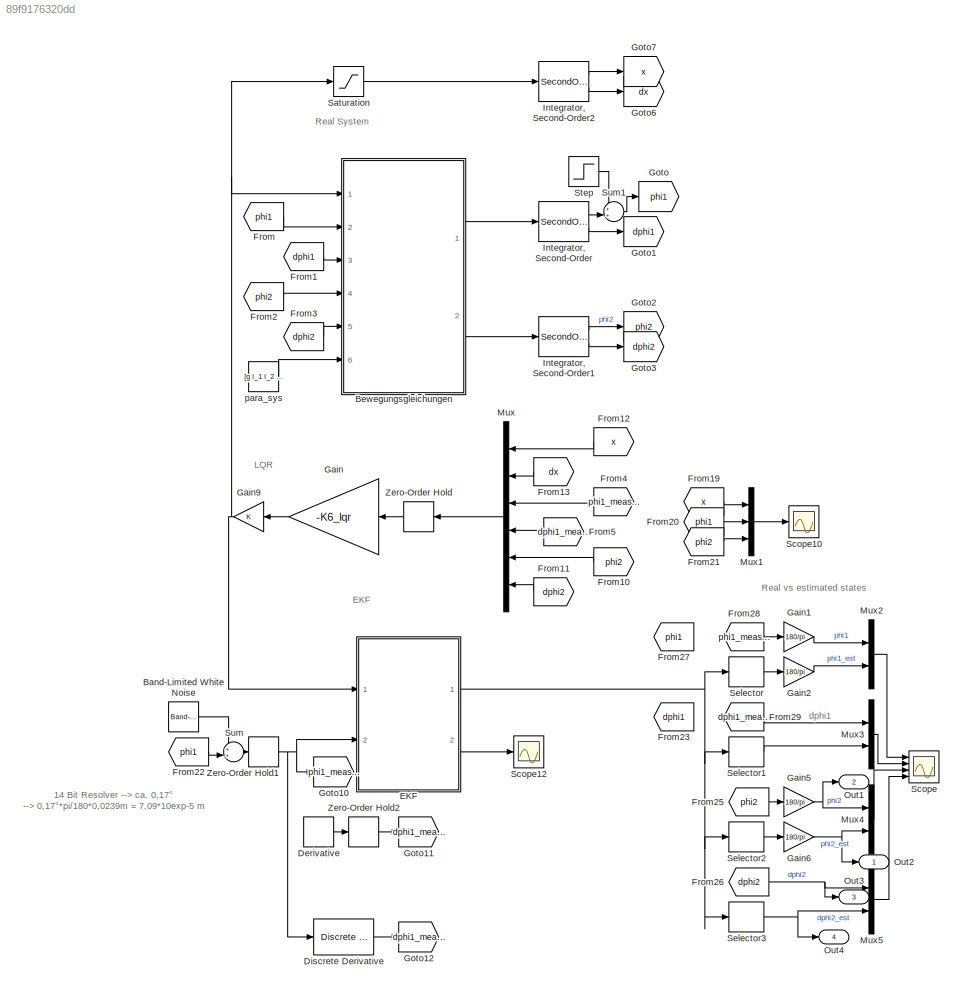
MODEL slx_89f9176320dd
KIND model
CONFIG AbsTol = auto
CONFIG FixedStep = T_s
CONFIG MaxStep = auto
CONFIG MinStep = auto
CONFIG RelTol = 1e-3
CONFIG SampleTimeConstraint = Unconstrained
CONFIG Solver = FixedStepAuto
CONFIG SolverMode = Auto
CONFIG SolverName = FixedStepAuto
CONFIG StartTime = 0.0
CONFIG StopTime = 5
BLOCK [Reference] Band-Limited White Noise  REF=simulink/Sources/Band-Limited
White Noise
  Cov = noise_power
  Ports = [0, 1]
  SourceBlock = simulink/Sources/Band-Limited\nWhite Noise
  SourceType = Band-Limited White Noise.
  Ts = T_s
  VectorParams1D = on
  seed = [23341]
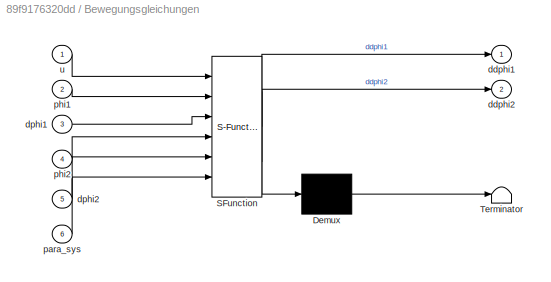
BLOCK [SubSystem] Bewegungsgleichungen
  ErrorFcn = Stateflow.Translate.translate
  PermitHierarchicalResolution = ExplicitOnly
  Ports = [6, 2]
  RequestExecContextInheritance = off
  SFBlockType = MATLAB Function
  TreatAsAtomicUnit = on
BLOCK [Demux] Bewegungsgleichungen/ Demux 
  Outputs = 1
  Ports = [1, 1]
BLOCK [S-Function] Bewegungsgleichungen/ SFunction 
  EnableBusSupport = on
  FunctionName = sf_sfun
  PortCounts = [6 3]
  Ports = [6, 3]
  Tag = Stateflow S-Function dp_EKF 5
BLOCK [Terminator] Bewegungsgleichungen/ Terminator 
BLOCK [Outport] Bewegungsgleichungen/ddphi1
  IconDisplay = Port number
BLOCK [Outport] Bewegungsgleichungen/ddphi2
  IconDisplay = Port number
  Port = 2
BLOCK [Inport] Bewegungsgleichungen/dphi1
  IconDisplay = Port number
  Port = 3
BLOCK [Inport] Bewegungsgleichungen/dphi2
  IconDisplay = Port number
  Port = 5
BLOCK [Inport] Bewegungsgleichungen/para_sys
  IconDisplay = Port number
  Port = 6
BLOCK [Inport] Bewegungsgleichungen/phi1
  IconDisplay = Port number
  Port = 2
BLOCK [Inport] Bewegungsgleichungen/phi2
  IconDisplay = Port number
  Port = 4
BLOCK [Inport] Bewegungsgleichungen/u
  IconDisplay = Port number
BLOCK [Derivative] Derivative
  Commented = on
BLOCK [Reference] Discrete Derivative  REF=simulink/Discrete/Discrete Derivative
  DoSatur = off
  ICPrevScaledInput = 0.0
  InputProcessing = Inherited
  LockScale = off
  OutDataType = fixdt(1, 16)
  OutDataTypeStr = Inherit: Inherit via internal rule
  OutMax = []
  OutMin = []
  OutScaling = 2^-10
  OutputDataTypeScalingMode = Inherit via internal rule
  Ports = [1, 1]
  RndMeth = Floor
  SourceBlock = simulink/Discrete/Discrete Derivative
  SourceType = Discrete Derivative
  gainval = 1.0
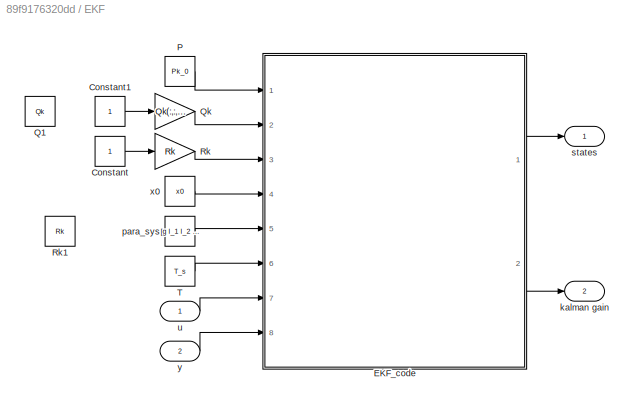
BLOCK [SubSystem] EKF
  Ports = [2, 2]
  RequestExecContextInheritance = off
BLOCK [Constant] EKF/Constant
BLOCK [Constant] EKF/Constant1
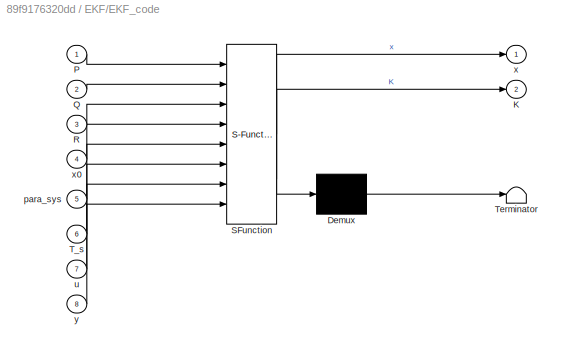
BLOCK [SubSystem] EKF/EKF_code
  ErrorFcn = Stateflow.Translate.translate
  PermitHierarchicalResolution = ExplicitOnly
  Ports = [8, 2]
  RequestExecContextInheritance = off
  SFBlockType = MATLAB Function
  TreatAsAtomicUnit = on
BLOCK [Demux] EKF/EKF_code/ Demux 
  Outputs = 1
  Ports = [1, 1]
BLOCK [S-Function] EKF/EKF_code/ SFunction 
  EnableBusSupport = on
  FunctionName = sf_sfun
  PortCounts = [8 3]
  Ports = [8, 3]
  Tag = Stateflow S-Function dp_EKF 2
BLOCK [Terminator] EKF/EKF_code/ Terminator 
BLOCK [Outport] EKF/EKF_code/K
  IconDisplay = Port number
  Port = 2
BLOCK [Inport] EKF/EKF_code/P
  IconDisplay = Port number
BLOCK [Inport] EKF/EKF_code/Q
  IconDisplay = Port number
  Port = 2
BLOCK [Inport] EKF/EKF_code/R
  IconDisplay = Port number
  Port = 3
BLOCK [Inport] EKF/EKF_code/T_s
  IconDisplay = Port number
  Port = 6
BLOCK [Inport] EKF/EKF_code/para_sys
  IconDisplay = Port number
  Port = 5
BLOCK [Inport] EKF/EKF_code/u
  IconDisplay = Port number
  Port = 7
BLOCK [Outport] EKF/EKF_code/x
  IconDisplay = Port number
BLOCK [Inport] EKF/EKF_code/x0
  IconDisplay = Port number
  Port = 4
BLOCK [Inport] EKF/EKF_code/y
  IconDisplay = Port number
  Port = 8
BLOCK [Constant] EKF/P
  Value = Pk_0
BLOCK [Constant] EKF/Q1
  Commented = on
  Value = Qk
BLOCK [Gain] EKF/Qk
  Gain = Qk(:,:,i_min,ii_min,iii_min, iiii_min)
  OutDataTypeStr = Inherit: Inherit via internal rule
  ParamDataTypeStr = Inherit: Inherit via internal rule
  SaturateOnIntegerOverflow = off
BLOCK [Gain] EKF/Rk
  Gain = Rk
  OutDataTypeStr = Inherit: Inherit via internal rule
  ParamDataTypeStr = Inherit: Inherit via internal rule
  SaturateOnIntegerOverflow = off
BLOCK [Constant] EKF/Rk1
  Commented = on
  Value = Rk
BLOCK [Constant] EKF/T
  Value = T_s
BLOCK [Outport] EKF/kalman gain
  IconDisplay = Port number
  Port = 2
BLOCK [Constant] EKF/para_sys
  Value = [g l_1 l_2 m_1 m_2 m_3 d_p1 d_p2]
BLOCK [Outport] EKF/states
  IconDisplay = Port number
BLOCK [Inport] EKF/u
  IconDisplay = Port number
BLOCK [Constant] EKF/x0
  Value = x0
BLOCK [Inport] EKF/y
  IconDisplay = Port number
  Port = 2
BLOCK [From] From
  GotoTag = phi1
BLOCK [From] From1
  GotoTag = dphi1
BLOCK [From] From10
  GotoTag = phi2
BLOCK [From] From11
  GotoTag = dphi2
BLOCK [From] From12
  GotoTag = x
BLOCK [From] From13
  GotoTag = dx
BLOCK [From] From19
  GotoTag = x
BLOCK [From] From2
  GotoTag = phi2
BLOCK [From] From20
  GotoTag = phi1
BLOCK [From] From21
  GotoTag = phi2
BLOCK [From] From22
  GotoTag = phi1
BLOCK [From] From23
  Commented = on
  GotoTag = dphi1
BLOCK [From] From25
  GotoTag = phi2
BLOCK [From] From26
  GotoTag = dphi2
BLOCK [From] From27
  Commented = on
  GotoTag = phi1
BLOCK [From] From28
  GotoTag = phi1_measure
BLOCK [From] From29
  GotoTag = dphi1_measure
BLOCK [From] From3
  GotoTag = dphi2
BLOCK [From] From4
  GotoTag = phi1_measure
BLOCK [From] From5
  GotoTag = dphi1_measure
BLOCK [Gain] Gain
  Gain = -K6_lqr
  Multiplication = Matrix(K*u) (u vector)
  OutDataTypeStr = Inherit: Inherit via internal rule
  ParamDataTypeStr = Inherit: Inherit via internal rule
  SampleTime = T_s
  SaturateOnIntegerOverflow = off
BLOCK [Gain] Gain1
  Gain = 180/pi
  OutDataTypeStr = Inherit: Inherit via internal rule
  ParamDataTypeStr = Inherit: Inherit via internal rule
  SaturateOnIntegerOverflow = off
BLOCK [Gain] Gain2
  Gain = 180/pi
  OutDataTypeStr = Inherit: Inherit via internal rule
  ParamDataTypeStr = Inherit: Inherit via internal rule
  SaturateOnIntegerOverflow = off
BLOCK [Gain] Gain5
  Gain = 180/pi
  OutDataTypeStr = Inherit: Inherit via internal rule
  ParamDataTypeStr = Inherit: Inherit via internal rule
  SaturateOnIntegerOverflow = off
BLOCK [Gain] Gain6
  Gain = 180/pi
  OutDataTypeStr = Inherit: Inherit via internal rule
  ParamDataTypeStr = Inherit: Inherit via internal rule
  SaturateOnIntegerOverflow = off
BLOCK [Gain] Gain9
  OutDataTypeStr = Inherit: Inherit via internal rule
  ParamDataTypeStr = Inherit: Inherit via internal rule
  SaturateOnIntegerOverflow = off
BLOCK [Goto] Goto
  GotoTag = phi1
BLOCK [Goto] Goto1
  GotoTag = dphi1
BLOCK [Goto] Goto10
  GotoTag = phi1_measure
BLOCK [Goto] Goto11
  Commented = on
  GotoTag = dphi1_measure
BLOCK [Goto] Goto12
  GotoTag = dphi1_measure
BLOCK [Goto] Goto2
  GotoTag = phi2
BLOCK [Goto] Goto3
  GotoTag = dphi2
BLOCK [Goto] Goto6
  GotoTag = dx
BLOCK [Goto] Goto7
  GotoTag = x
BLOCK [SecondOrderIntegrator] Integrator, Second-Order
  ICDXDT = dphi1_0
  ICX = phi1_0
  Ports = [1, 2]
BLOCK [SecondOrderIntegrator] Integrator, Second-Order1
  ICDXDT = dphi2_0
  ICX = phi2_0
  Ports = [1, 2]
BLOCK [SecondOrderIntegrator] Integrator, Second-Order2
  ICDXDT = dx_0
  ICX = x_0
  LimitDXDT = on
  LimitX = on
  LowerLimitDXDT = -5
  LowerLimitX = -0.2
  Ports = [1, 2]
  UpperLimitDXDT = 5
  UpperLimitX = 0.2
BLOCK [Mux] Mux
  DisplayOption = bar
  Inputs = 6
  Ports = [6, 1]
BLOCK [Mux] Mux1
  DisplayOption = bar
  Inputs = 3
  Ports = [3, 1]
BLOCK [Mux] Mux2
  DisplayOption = bar
  Inputs = 2
  Ports = [2, 1]
BLOCK [Mux] Mux3
  DisplayOption = bar
  Inputs = 2
  Ports = [2, 1]
BLOCK [Mux] Mux4
  DisplayOption = bar
  Inputs = 2
  Ports = [2, 1]
BLOCK [Mux] Mux5
  DisplayOption = bar
  Inputs = 2
  Ports = [2, 1]
BLOCK [Outport] Out1
  IconDisplay = Port number
  Port = 2
BLOCK [Outport] Out2
  IconDisplay = Port number
BLOCK [Outport] Out3
  IconDisplay = Port number
  Port = 3
BLOCK [Outport] Out4
  IconDisplay = Port number
  Port = 4
BLOCK [Saturate] Saturation
  InputPortMap = u0
  LowerLimit = -20
  Ports = [1, 1]
  UpperLimit = 20
BLOCK [Scope] Scope
  DataFormat = StructureWithTime
  Floating = off
  LimitDataPoints = off
  NumInputPorts = 4
  Ports = [4]
  SaveName = ScopeData1
  ShowLegends = on
  YMax = 4.283~8~10.03074~0.90786
  YMin = -6.68849~-5~-26.45814~-0.15164
BLOCK [Scope] Scope10
  DataFormat = StructureWithTime
  Floating = off
  LimitDataPoints = off
  NumInputPorts = 1
  Ports = [1]
  SaveName = ScopeData9
  ShowLegends = on
  YMax = 0.07045
  YMin = -0.10904
BLOCK [Scope] Scope12
  DataFormat = StructureWithTime
  Floating = off
  LimitDataPoints = off
  NumInputPorts = 1
  Ports = [1]
  SaveName = ScopeData2
  ShowLegends = on
  YMax = 1.18362
  YMin = -0.53538
BLOCK [Selector] Selector
  Indices = [1]
  InputPortWidth = 4
  Ports = [1, 1]
BLOCK [Selector] Selector1
  Indices = [2]
  InputPortWidth = 4
  Ports = [1, 1]
BLOCK [Selector] Selector2
  Indices = [3]
  InputPortWidth = 4
  Ports = [1, 1]
BLOCK [Selector] Selector3
  Indices = [4]
  InputPortWidth = 4
  Ports = [1, 1]
BLOCK [Step] Step
  After = 1*0.0175
  SampleTime = 0
  Time = 3.5
BLOCK [Sum] Sum
  IconShape = round
  InputSameDT = off
  Inputs = ++|
  OutDataTypeStr = Inherit: Inherit via internal rule
  Ports = [2, 1]
  SaturateOnIntegerOverflow = off
BLOCK [Sum] Sum1
  IconShape = round
  InputSameDT = off
  Inputs = ++|
  OutDataTypeStr = Inherit: Inherit via internal rule
  Ports = [2, 1]
  SaturateOnIntegerOverflow = off
BLOCK [ZeroOrderHold] Zero-Order Hold
  SampleTime = T_s
BLOCK [ZeroOrderHold] Zero-Order Hold1
  SampleTime = T_s
BLOCK [ZeroOrderHold] Zero-Order Hold2
  Commented = on
  SampleTime = T_s
BLOCK [Constant] para_sys
  Value = [g l_1 l_2 m_1 m_2 m_3 d_p1 d_p2]
ANNOTATION (root): 14 Bit Resolver --> ca. 0,17° --> 0,17°*pi/180*0,0239m = 7,09*10exp-5 m
ANNOTATION (root): EKF
ANNOTATION (root): LQR
ANNOTATION (root): Real System
ANNOTATION (root): Real vs estimated states
ANNOTATION (root): dphi1
LINE Band-Limited White Noise:1 -> Sum:1
LINE Bewegungsgleichungen:1 -> Integrator, Second-Order:1
LINE Bewegungsgleichungen:2 -> Integrator, Second-Order1:1
LINE Derivative:1 -> Zero-Order Hold2:1
LINE Discrete Derivative:1 -> Goto12:1
LINE EKF/Constant1:1 -> EKF/Qk:1
LINE EKF/Constant:1 -> EKF/Rk:1
LINE EKF/EKF_code:1 -> EKF/states:1
LINE EKF/EKF_code:2 -> EKF/kalman gain:1
LINE EKF/P:1 -> EKF/EKF_code:1
LINE EKF/Qk:1 -> EKF/EKF_code:2
LINE EKF/Rk:1 -> EKF/EKF_code:3
LINE EKF/T:1 -> EKF/EKF_code:6
LINE EKF/para_sys:1 -> EKF/EKF_code:5
LINE EKF/u:1 -> EKF/EKF_code:7
LINE EKF/x0:1 -> EKF/EKF_code:4
LINE EKF/y:1 -> EKF/EKF_code:8
NET EKF:1 -> Selector1:1, Selector2:1, Selector3:1, Selector:1
LINE EKF:2 -> Scope12:1
LINE From10:1 -> Mux:5
LINE From11:1 -> Mux:6
LINE From12:1 -> Mux:1
LINE From13:1 -> Mux:2
LINE From19:1 -> Mux1:1
LINE From1:1 -> Bewegungsgleichungen:3
LINE From20:1 -> Mux1:2
LINE From21:1 -> Mux1:3
LINE From22:1 -> Sum:2
LINE From25:1 -> Gain5:1
NET From26:1 -> Mux5:1, Out3:1
LINE From28:1 -> Gain1:1
LINE From29:1 -> Mux3:1
LINE From2:1 -> Bewegungsgleichungen:4
LINE From3:1 -> Bewegungsgleichungen:5
LINE From4:1 -> Mux:3
LINE From5:1 -> Mux:4
LINE From:1 -> Bewegungsgleichungen:2
LINE Gain1:1 -> Mux2:1
LINE Gain2:1 -> Mux2:2
NET Gain5:1 -> Mux4:1, Out1:1
NET Gain6:1 -> Mux4:2, Out2:1
NET Gain9:1 -> Bewegungsgleichungen:1, EKF:1, Saturation:1
LINE Gain:1 -> Gain9:1
LINE Integrator, Second-Order1:1 -> Goto2:1
LINE Integrator, Second-Order1:2 -> Goto3:1
LINE Integrator, Second-Order2:1 -> Goto7:1
LINE Integrator, Second-Order2:2 -> Goto6:1
LINE Integrator, Second-Order:1 -> Sum1:2
LINE Integrator, Second-Order:2 -> Goto1:1
LINE Mux1:1 -> Scope10:1
LINE Mux2:1 -> Scope:1
LINE Mux3:1 -> Scope:2
LINE Mux4:1 -> Scope:3
LINE Mux5:1 -> Scope:4
LINE Mux:1 -> Zero-Order Hold:1
LINE Saturation:1 -> Integrator, Second-Order2:1
LINE Selector1:1 -> Mux3:2
LINE Selector2:1 -> Gain6:1
NET Selector3:1 -> Mux5:2, Out4:1
LINE Selector:1 -> Gain2:1
LINE Step:1 -> Sum1:1
LINE Sum1:1 -> Goto:1
LINE Sum:1 -> Zero-Order Hold1:1
NET Zero-Order Hold1:1 -> Discrete Derivative:1, EKF:2, Goto10:1
LINE Zero-Order Hold2:1 -> Goto11:1
LINE Zero-Order Hold:1 -> Gain:1
LINE para_sys:1 -> Bewegungsgleichungen:6
note: NET lines group one-source signal fan-out (src -> all destinations, sorted); 1:1 wires keep LINE
CHART EKF/EKF_code states=1 transitions=1
  STATE_LABEL 'eML_blk_kernel()'
  STATE_LABEL 'SCRIPT:\nfunction [x, K]  = extended_kalman_filter(P, Q, R, x0, para_sys, T_s, u, y)\n% Extended Kalman Filter (EKF) fuer nichtlineare Systeme\n% Das Extended Kalman Filter praediziert den Zustand eines nichtlinearen\n% Systems durch Linearisierung im Arbeistpunkt.\n% R ist die Kovarianzmatrix fuer das Messrauschen.\n% Q ist die Kovarianzmatrix fuer das Prozessrauschen.\n% Das Verhaeltnis von Q und R gib...<+3608ch>'
CHART Bewegungsgleichungen states=1 transitions=1
  STATE_LABEL 'eML_blk_kernel()'
  STATE_LABEL 'SCRIPT:\nfunction [ddphi1, ddphi2] = pendel_1_2(u, phi1, dphi1, phi2, dphi2, para_sys)\n%#codegen\n\ng = para_sys(1);\nl_1 = para_sys(2);\nl_2 = para_sys(3);\nm_1 = para_sys(4);\nm_2 = para_sys(5);\nm_3 = para_sys(6);\nd_p1 = para_sys(7);\nd_p2 = para_sys(8);\n\nddphi1 = 1/(l_1^2*(9*cos(phi1-phi2)^2*m_2-4*m_1-12*m_2-12*m_3)*l_2)*(9*dphi1^2*cos(phi1-phi2)*sin(phi1-phi2)*l_1^2*l_2*m_2+6*m_2*l_1*l_2^2*sin(phi1-ph...<+1339ch>'
